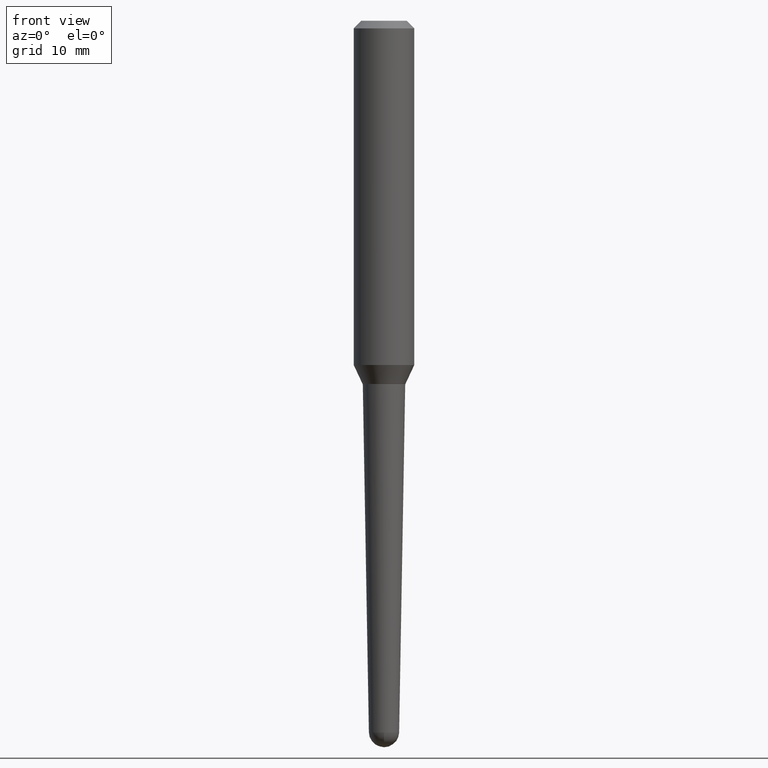
[diagram: clean part render]
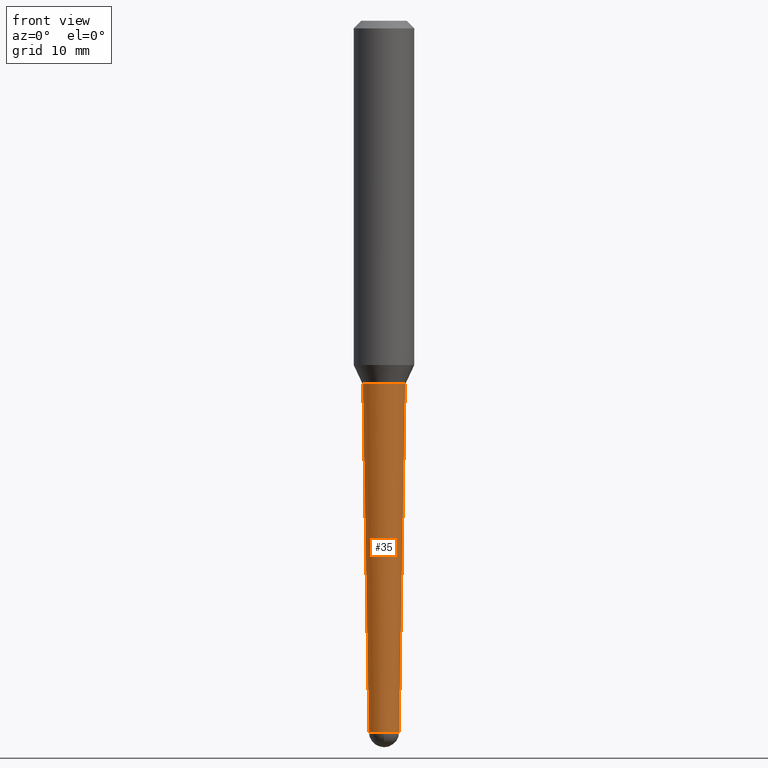
[diagram: same view with one face highlighted and labeled with its STEP entity id]
A machine part, front view. The second image highlights one B-rep face of the part: STEP entity #35.
In plain terms, the highlighted conical surface has half-angle 1 deg.
Its self-contained STEP definition (entity closure, byte-faithful):
#4 = CIRCLE ( 'NONE', #5, 0.06249048094727445435 ) ;
#5 = AXIS2_PLACEMENT_3D ( 'NONE', #268, #382, #14 ) ;
#7 = DIRECTION ( 'NONE',  ( -2.445468806185136597E-29, 3.491481338843145583E-15, 1.000000000000000000 ) ) ;
#14 = DIRECTION ( 'NONE',  ( 1.000000000000000000, -6.982962677686258822E-15, 0.000000000000000000 ) ) ;
#35 = ADVANCED_FACE ( 'NONE', ( #79 ), #37, .T. ) ;
#37 = CONICAL_SURFACE ( 'NONE', #300, 0.06249048094727445435, 0.01745329251994320874 ) ;
#79 = FACE_OUTER_BOUND ( 'NONE', #92, .T. ) ;
#85 = VERTEX_POINT ( 'NONE', #257 ) ;
#88 = CARTESIAN_POINT ( 'NONE',  ( -0.06249048094727445435, -9.816013281901434957E-15, -2.938590775402329935 ) ) ;
#90 = EDGE_CURVE ( 'NONE', #200, #285, #289, .T. ) ;
#92 = EDGE_LOOP ( 'NONE', ( #328, #254, #392, #107, #141 ) ) ;
#107 = ORIENTED_EDGE ( 'NONE', *, *, #260, .T. ) ;
#109 = AXIS2_PLACEMENT_3D ( 'NONE', #402, #434, #403 ) ;
#132 = DIRECTION ( 'NONE',  ( -2.445468806185136597E-29, 3.491481338843145583E-15, 1.000000000000000000 ) ) ;
#141 = ORIENTED_EDGE ( 'NONE', *, *, #355, .F. ) ;
#148 = CARTESIAN_POINT ( 'NONE',  ( 7.186232075389790477E-29, -1.026003485481384412E-14, -2.938590775402329935 ) ) ;
#170 = CARTESIAN_POINT ( 'NONE',  ( -0.06249048094727445435, -7.215395747631399809E-15, -2.938590775402329935 ) ) ;
#171 = VECTOR ( 'NONE', #232, 39.37007874015748143 ) ;
#173 = EDGE_CURVE ( 'NONE', #304, #85, #347, .T. ) ;
#178 = EDGE_CURVE ( 'NONE', #304, #200, #4, .T. ) ;
#200 = VERTEX_POINT ( 'NONE', #343 ) ;
#222 = DIRECTION ( 'NONE',  ( 1.000000000000000000, -6.982962677686258822E-15, 0.000000000000000000 ) ) ;
#230 = LINE ( 'NONE', #444, #329 ) ;
#232 = DIRECTION ( 'NONE',  ( -0.01745240643728342492, 3.614956375479315570E-15, 0.9998476951563912696 ) ) ;
#254 = ORIENTED_EDGE ( 'NONE', *, *, #178, .T. ) ;
#257 = CARTESIAN_POINT ( 'NONE',  ( -0.08760117633705687135, -4.614778213361364662E-15, -1.500000000000000222 ) ) ;
#260 = EDGE_CURVE ( 'NONE', #285, #459, #230, .T. ) ;
#268 = CARTESIAN_POINT ( 'NONE',  ( 7.186232075389790477E-29, -1.026003485481384412E-14, -2.938590775402329935 ) ) ;
#278 = DIRECTION ( 'NONE',  ( 1.000000000000000000, -6.982962677686271444E-15, 0.000000000000000000 ) ) ;
#285 = VERTEX_POINT ( 'NONE', #412 ) ;
#289 = CIRCLE ( 'NONE', #109, 0.06249048094727445435 ) ;
#300 = AXIS2_PLACEMENT_3D ( 'NONE', #148, #7, #222 ) ;
#304 = VERTEX_POINT ( 'NONE', #170 ) ;
#328 = ORIENTED_EDGE ( 'NONE', *, *, #173, .F. ) ;
#329 = VECTOR ( 'NONE', #410, 39.37007874015748143 ) ;
#343 = CARTESIAN_POINT ( 'NONE',  ( -4.363686961654078487E-16, -0.06249048094728436309, -2.938590775402329935 ) ) ;
#347 = LINE ( 'NONE', #88, #171 ) ;
#355 = EDGE_CURVE ( 'NONE', #85, #459, #439, .T. ) ;
#382 = DIRECTION ( 'NONE',  ( -2.445468806185136597E-29, 3.491481338843145583E-15, 1.000000000000000000 ) ) ;
#383 = AXIS2_PLACEMENT_3D ( 'NONE', #422, #132, #278 ) ;
#392 = ORIENTED_EDGE ( 'NONE', *, *, #90, .T. ) ;
#402 = CARTESIAN_POINT ( 'NONE',  ( 7.186232075389790477E-29, -1.026003485481384412E-14, -2.938590775402329935 ) ) ;
#403 = DIRECTION ( 'NONE',  ( 1.000000000000000000, -6.982962677686258822E-15, 0.000000000000000000 ) ) ;
#410 = DIRECTION ( 'NONE',  ( 0.01745240643728342492, 3.369080066536508461E-15, 0.9998476951563912696 ) ) ;
#412 = CARTESIAN_POINT ( 'NONE',  ( 0.06249048094727445435, -8.272670652063563358E-15, -2.938590775402329935 ) ) ;
#420 = CARTESIAN_POINT ( 'NONE',  ( 0.08760117633705687135, -5.848937753147799115E-15, -1.500000000000000222 ) ) ;
#422 = CARTESIAN_POINT ( 'NONE',  ( 3.668203209277704895E-29, -5.237222008264718177E-15, -1.500000000000000222 ) ) ;
#434 = DIRECTION ( 'NONE',  ( -2.445468806185136597E-29, 3.491481338843145583E-15, 1.000000000000000000 ) ) ;
#439 = CIRCLE ( 'NONE', #383, 0.08760117633705687135 ) ;
#444 = CARTESIAN_POINT ( 'NONE',  ( 0.06249048094727445435, -1.069640355097932523E-14, -2.938590775402329935 ) ) ;
#459 = VERTEX_POINT ( 'NONE', #420 ) ;